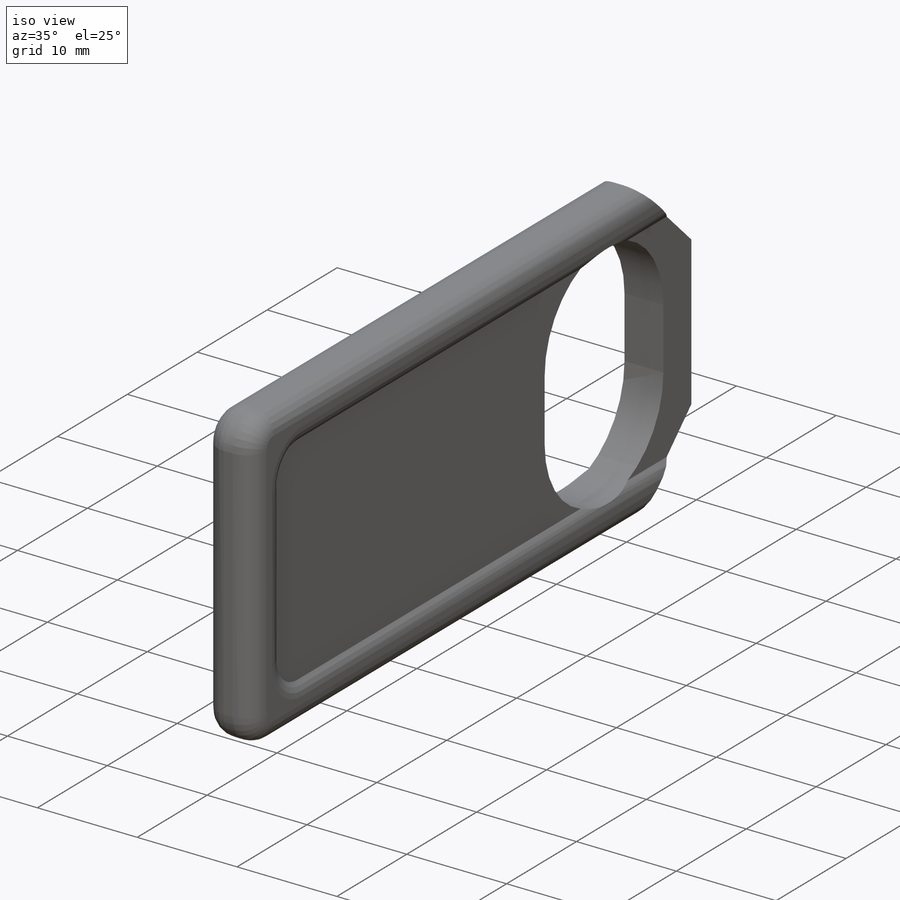
[diagram: iso view]
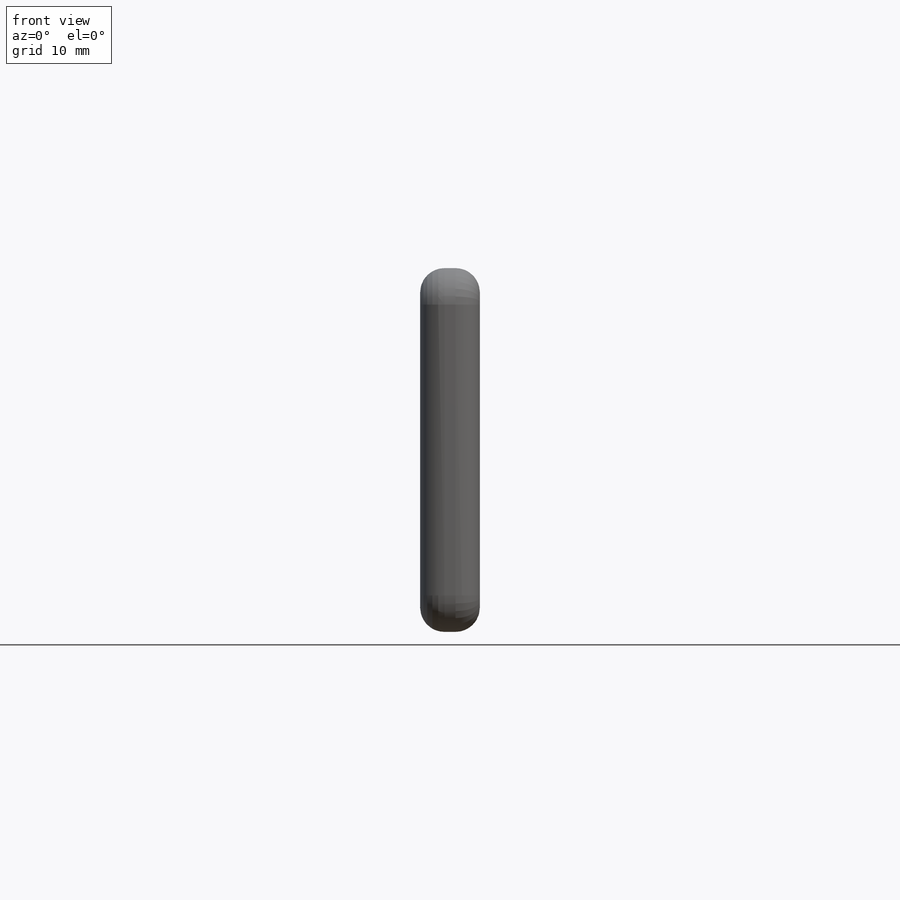
[diagram: front view]
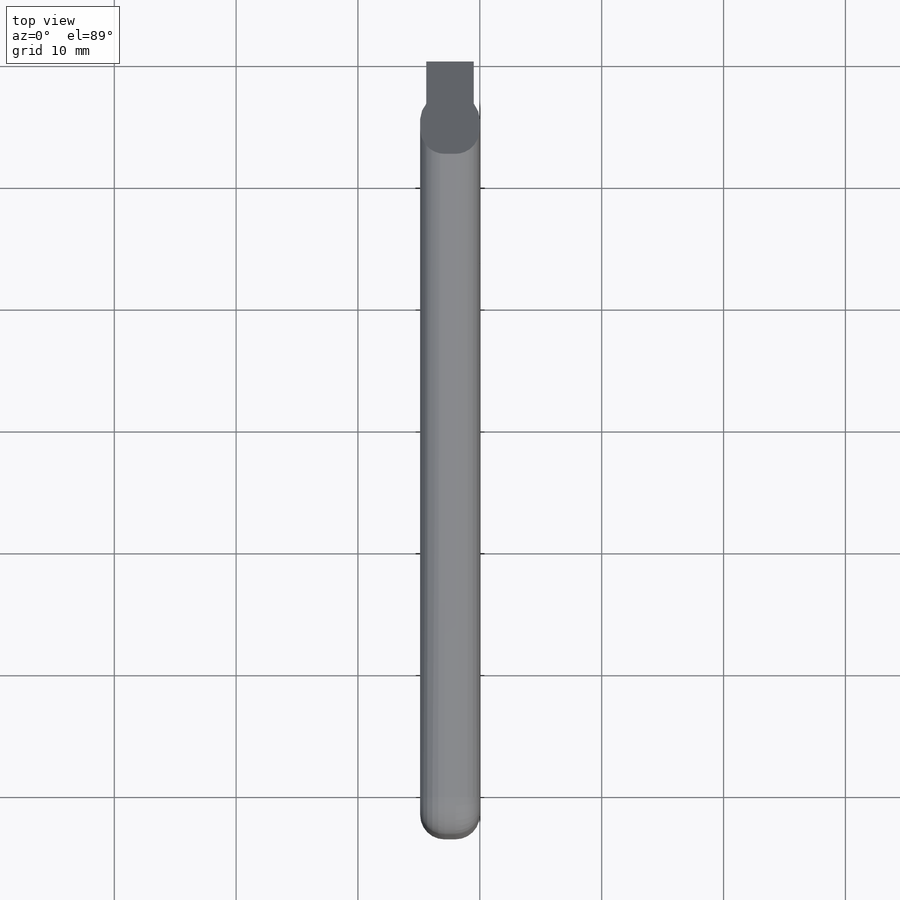
[diagram: top view]
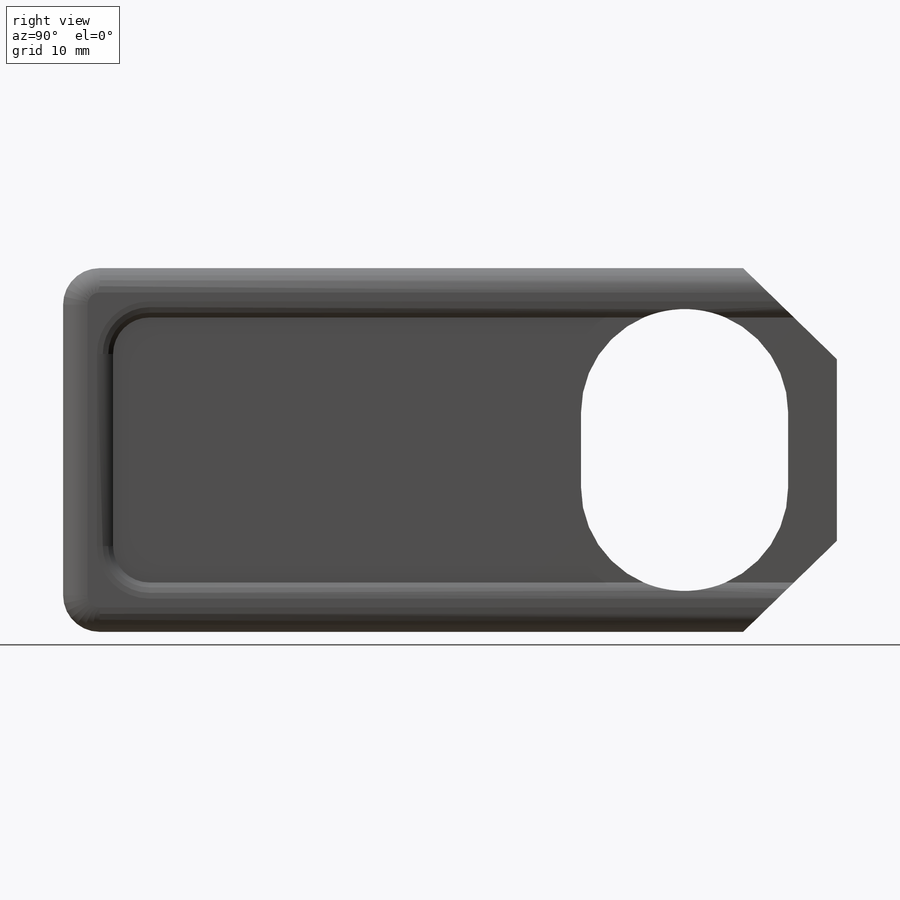
[diagram: right view]
SOLIDWORKS PART (.sldprt)
format: sldprt  version: not decoded by parser v0  size: 264,192 bytes
history: native  units: mm
features: plane x3, sketch x3, cut_extrude x2, fillet x2, material x1, extrude x1 (+9 scaffold rows collapsed)
feature tree (21):
  scaffold x9  (default folders/planes/origin — collapsed)
  material  "Material <nicht festgelegt>"
  plane  "Ebene vorne"
  plane  "Ebene oben"
  plane  "Ebene rechts"
  sketch  "Skizze1"  dims[D1=63.5mm D2=29.85mm]
  extrude  "Aufsatz-Linear austragen1"  Depth=4.9mm
  sketch  "Skizze3"  dims[c1.D6=8.5mm c1.D7=8.5mm c1.D8=8.5mm c1.D1=7.475mm c1.D2=7.475mm c1.D3=7.7mm c1.D4=7.7mm c1.D5=4.0mm c2.D7=3.36mm c2.D8=3.36mm]
  cut_extrude  "Schnitt-Linear austragen1"  [1 undecoded]
  sketch  "Skizze8"  dims[D1=0.5mm D2=0.5mm D3=4.05mm D4=4.05mm D5=4.05mm D6=4.05mm]
  cut_extrude  "Schnitt-Linear austragen2"  Depth=59.4mm
  fillet  "Verrundung1"  Radius=3mm
  fillet  "Verrundung2"  Radius=2mm
decode coverage: 7 of 8 modeling features carry decoded parameters
note: 1 parameter value undecoded
note: suppression state not decoded; provenance and decode notes live in map.json
